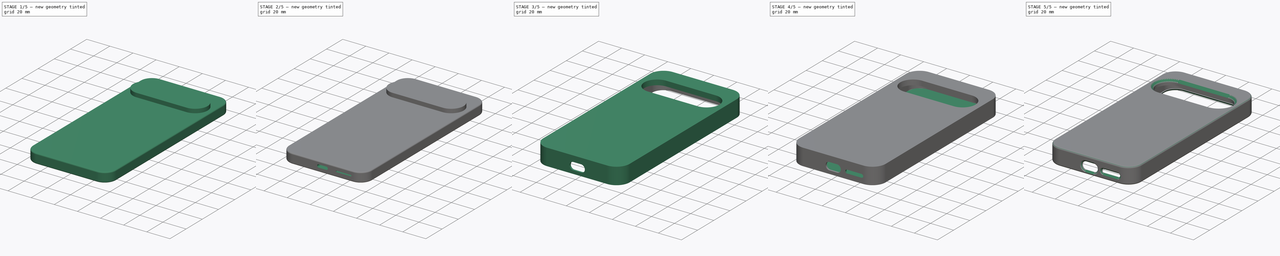
[diagram: build sequence overview — one tinted view per stage of 5, left to right]
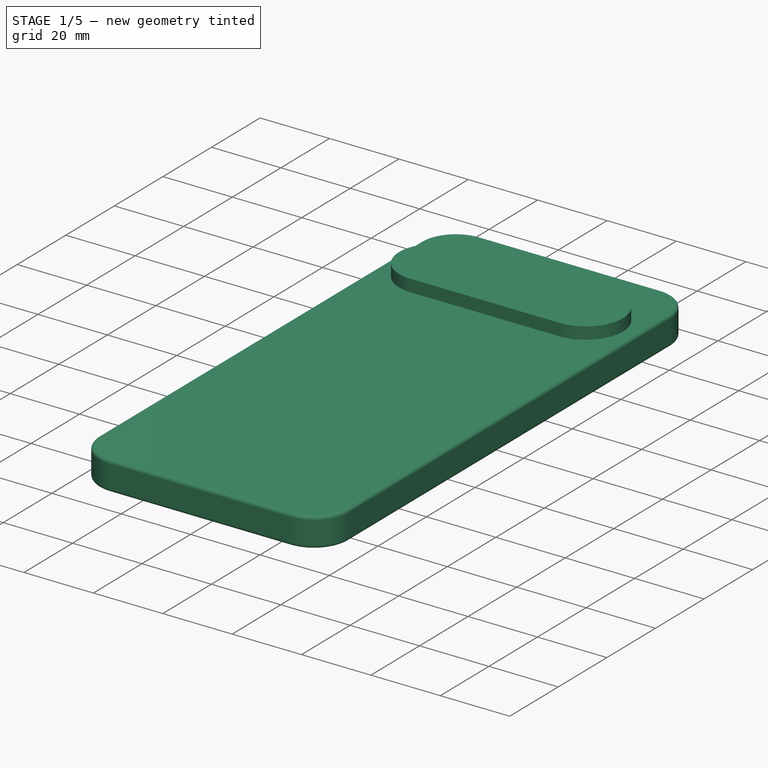
[diagram: stage 1 of 5 — iso view after this stage's code; geometry added in this stage tinted green]
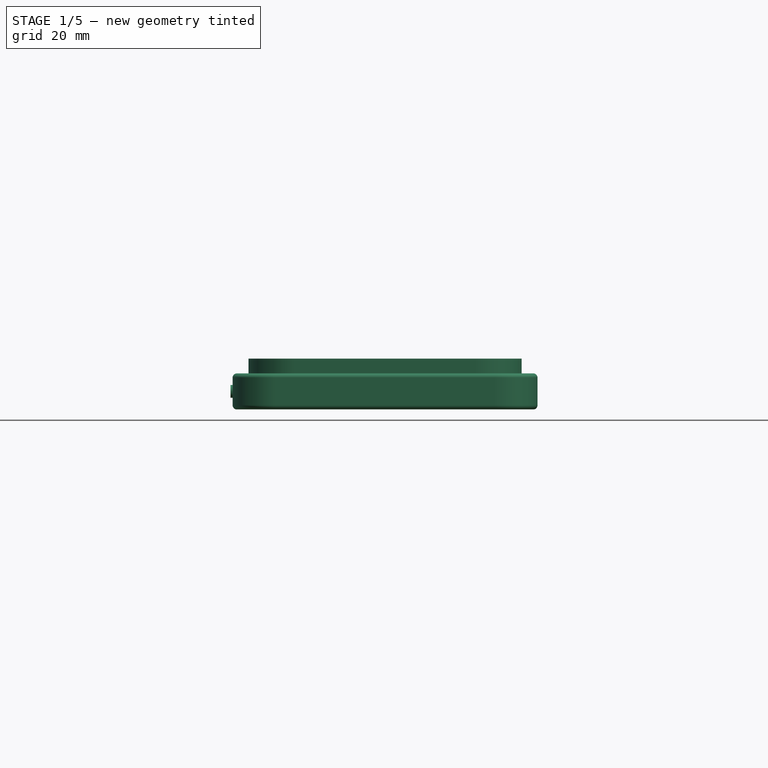
[diagram: stage 1 of 5 — front view after this stage's code; geometry added in this stage tinted green]
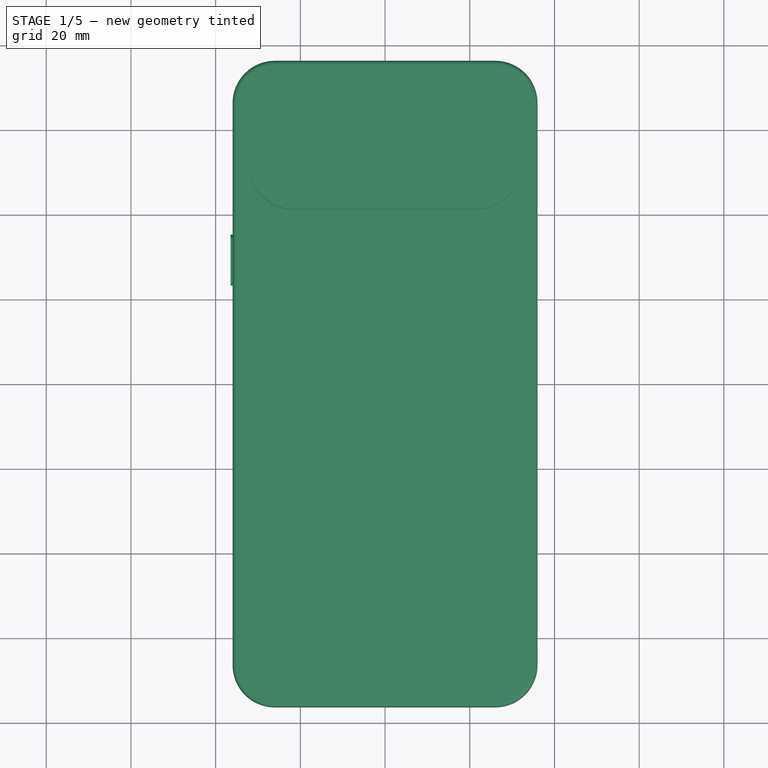
[diagram: stage 1 of 5 — top view after this stage's code; geometry added in this stage tinted green]
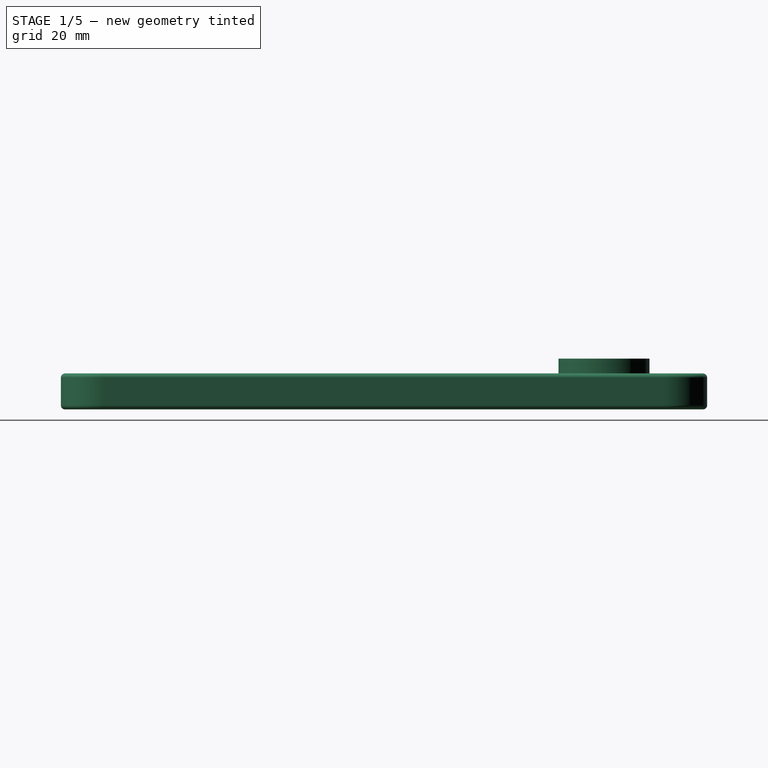
[diagram: stage 1 of 5 — right view after this stage's code; geometry added in this stage tinted green]
FCSTD DOCUMENT  (FreeCAD 1.0R39319 (Git))
Label: phone
License: All rights reserved
LicenseURL: https://en.wikipedia.org/wiki/All_rights_reserved
objects: PartDesign::SubShapeBinder×9, PartDesign::Pocket×7, Sketcher::SketchObject×6, PartDesign::Pad×6, PartDesign::Fillet×2, PartDesign::Body×2, PartDesign::Chamfer×2, PartDesign::SubtractiveLoft×1
note: 77 computed .brp shape members not serialized (recipe doc carries the construction recipe); baked Part::Feature solids carry a one-line shape summary decoded from their .brp

FEATURE [Sketcher::SketchObject] Sketch  label="SketchMain"
  ArcFitTolerance = 1e-06
  AttachmentSupport = -> [XY_Plane]
  FullyConstrained = true
  MakeInternals = false
  MapMode = 5
  sketch-geometry (12):
    g0: LineSegment StartX=-26 StartY=-76.3 StartZ=0 EndX=26 EndY=-76.3 EndZ=0
    g1: LineSegment StartX=36 StartY=-66.3 StartZ=0 EndX=36 EndY=66.3 EndZ=0
    g2: LineSegment StartX=26 StartY=76.3 StartZ=0 EndX=-26 EndY=76.3 EndZ=0
    g3: LineSegment StartX=-36 StartY=66.3 StartZ=0 EndX=-36 EndY=-66.3 EndZ=0
    g4: ArcOfCircle CenterX=-26 CenterY=66.3 CenterZ=0 NormalX=0 NormalY=0 NormalZ=1 AngleXU=0 Radius=10 StartAngle=1.5708 EndAngle=3.14159
    g5: GeomPoint [constr] X=-36 Y=76.3 Z=0
    g6: ArcOfCircle CenterX=26 CenterY=66.3 CenterZ=0 NormalX=0 NormalY=0 NormalZ=1 AngleXU=0 Radius=10 StartAngle=4e-16 EndAngle=1.5708
    g7: GeomPoint [constr] X=36 Y=76.3 Z=0
    g8: ArcOfCircle CenterX=26 CenterY=-66.3 CenterZ=0 NormalX=0 NormalY=0 NormalZ=1 AngleXU=0 Radius=10 StartAngle=4.71239 EndAngle=6.28319
    g9: GeomPoint [constr] X=36 Y=-76.3 Z=0
    g10: ArcOfCircle CenterX=-26 CenterY=-66.3 CenterZ=0 NormalX=0 NormalY=0 NormalZ=1 AngleXU=0 Radius=10 StartAngle=3.14159 EndAngle=4.71239
    g11: GeomPoint [constr] X=-36 Y=-76.3 Z=0
  constraints (26):
    c: Horizontal(g0)
    c: Horizontal(g2)
    c: Vertical(g1)
    c: Vertical(g3)
    c: Distance(g9,g11) = 72
    c: Distance(g11,g5) = 152.6
    c: PointOnObject(g5,g2)
    c: PointOnObject(g5,g3)
    c: Tangent(g2,g4) = -1.5708
    c: Tangent(g3,g4) = -1.5708
    c: Radius(g4) = 10
    c: PointOnObject(g7,g1)
    c: Tangent(g2,g6) = -1.5708
    c: Tangent(g1,g6) = -1.5708
    c: PointOnObject(g9,g0)
    c: Tangent(g0,g8) = -1.5708
    c: Tangent(g1,g8) = -1.5708
    c: PointOnObject(g11,g3)
    c: PointOnObject(g11,g0)
    c: Tangent(g3,g10) = -1.5708
    c: Tangent(g0,g10) = -1.5708
    c: Equal(g6,g4)
    c: Equal(g4,g8)
    c: Equal(g8,g10)
    c: Symmetric(g5,g7,g-2)
    c: Symmetric(g7,g9,g-1)
FEATURE [PartDesign::Pad] Pad  label="MainPad"
  Direction = (0,0,1)
  Length = 8.5
  Length2 = 10
  Profile = -> Sketch
  ReferenceAxis = -> Sketch [N_Axis]
  Refine = true
  Suppressed = false
  Type = 0
FEATURE [Sketcher::SketchObject] Sketch002  label="CameraSketch"
  ArcFitTolerance = 1e-06
  AttachmentSupport = -> [Pad]
  ExternalGeometry = -> [Pad]
  FullyConstrained = true
  MakeInternals = false
  MapMode = 5
  Placement = pos=(0,0,8.5) rot=(0,0,1;0rad)
  expr: Constraints[6] = 64.5 - 10.75 * 2
  sketch-geometry (4):
    g0: ArcOfCircle CenterX=-21.5 CenterY=51.95 CenterZ=0 NormalX=0 NormalY=0 NormalZ=1 AngleXU=0 Radius=10.75 StartAngle=1.5708 EndAngle=4.71239
    g1: ArcOfCircle CenterX=21.5 CenterY=51.95 CenterZ=0 NormalX=0 NormalY=0 NormalZ=1 AngleXU=0 Radius=10.75 StartAngle=4.71239 EndAngle=7.85398
    g2: LineSegment StartX=-21.5 StartY=62.7 StartZ=0 EndX=21.5 EndY=62.7 EndZ=0
    g3: LineSegment StartX=-21.5 StartY=41.2 StartZ=0 EndX=21.5 EndY=41.2 EndZ=0
  constraints (9):
    c: Tangent(g0,g2) = 1.5708
    c: Tangent(g0,g3) = -1.5708
    c: Tangent(g1,g2) = 1.5708
    c: Tangent(g1,g3) = -1.5708
    c: Equal(g0,g1)
    c: Radius(g0) = 10.75
    c: DistanceX(g0,g1) = 43
    c: Symmetric(g0,g1,g-2)
    c: Distance(g-3,g2) = 13.6
FEATURE [PartDesign::Fillet] Fillet  label="MainFilet"
  Base = -> Pad [Edge1,Edge2,Edge3,Edge4,Edge5,Edge6,Edge7,Edge8,Edge9,Edge10,Edge11,Edge12,Edge13,Edge14,Edge15,Edge16,Edge17,Edge18,Edge19,Edge20,Edge21,Edge22,Edge23,Edge24]
  BaseFeature = -> Pad
  Radius = 1
  Refine = true
  SupportTransform = false
  Suppressed = false
  UseAllEdges = true
FEATURE [PartDesign::Pad] Pad001  label="CameraPad"
  BaseFeature = -> Fillet
  Direction = (0,0,1)
  Length = 3.5
  Length2 = 10
  Profile = -> Sketch002
  ReferenceAxis = -> Sketch002 [N_Axis]
  Refine = true
  Suppressed = false
  Type = 0
FEATURE [Sketcher::SketchObject] Sketch003  label="PowerButtonSketch"
  ArcFitTolerance = 1e-06
  AttachmentSupport = -> [Pad001]
  ExternalGeometry = -> [Pad001]
  FullyConstrained = true
  MakeInternals = false
  MapMode = 5
  Placement = pos=(-36,0,0) rot=(0.57735,-0.57735,-0.57735;2.0944rad)
  expr: .Constraints.Height = 3 mm
  sketch-geometry (12):
    g0: LineSegment StartX=-35.3 StartY=4.26 StartZ=0 EndX=-35.3 EndY=4.24 EndZ=0
    g1: LineSegment StartX=-33.81 StartY=2.75 StartZ=0 EndX=-24.79 EndY=2.75 EndZ=0
    g2: LineSegment StartX=-23.3 StartY=4.24 StartZ=0 EndX=-23.3 EndY=4.26 EndZ=0
    g3: LineSegment StartX=-24.79 StartY=5.75 StartZ=0 EndX=-33.81 EndY=5.75 EndZ=0
    g4: ArcOfCircle CenterX=-33.81 CenterY=4.26 CenterZ=0 NormalX=0 NormalY=0 NormalZ=1 AngleXU=0 Radius=1.49 StartAngle=1.5708 EndAngle=3.14159
    g5: GeomPoint [constr] X=-35.3 Y=5.75 Z=0
    g6: ArcOfCircle CenterX=-24.79 CenterY=4.26 CenterZ=0 NormalX=0 NormalY=0 NormalZ=1 AngleXU=0 Radius=1.49 StartAngle=0 EndAngle=1.5708
    g7: GeomPoint [constr] X=-23.3 Y=5.75 Z=0
    g8: ArcOfCircle CenterX=-24.79 CenterY=4.24 CenterZ=0 NormalX=0 NormalY=0 NormalZ=1 AngleXU=0 Radius=1.49 StartAngle=4.71239 EndAngle=6.28319
    g9: GeomPoint [constr] X=-23.3 Y=2.75 Z=0
    g10: ArcOfCircle CenterX=-33.81 CenterY=4.24 CenterZ=0 NormalX=0 NormalY=0 NormalZ=1 AngleXU=0 Radius=1.49 StartAngle=3.14159 EndAngle=4.71239
    g11: GeomPoint [constr] X=-35.3 Y=2.75 Z=0
  constraints (28):
    c: Vertical(g0)
    c: Vertical(g2)
    c: Horizontal(g1)
    c: Horizontal(g3)
    c: Distance(g5,g7) = 12  'Width'
    c: Distance(g11,g5) = 3  'Height'
    c: PointOnObject(g5,g0)
    c: PointOnObject(g5,g3)
    c: Tangent(g0,g4) = -1.5708
    c: Tangent(g3,g4) = -1.5708
    c: PointOnObject(g7,g2)
    c: PointOnObject(g7,g3)
    c: Tangent(g2,g6) = -1.5708
    c: Tangent(g3,g6) = -1.5708
    c: PointOnObject(g9,g1)
    c: PointOnObject(g9,g2)
    c: Tangent(g1,g8) = -1.5708
    c: Tangent(g2,g8) = -1.5708
    c: PointOnObject(g11,g0)
    c: PointOnObject(g11,g1)
    c: Tangent(g0,g10) = -1.5708
    c: Tangent(g1,g10) = -1.5708
    c: Equal(g4,g10)
    c: Equal(g10,g8)
    c: Equal(g8,g6)
    c: Radius(g4) = 1.49
    c: Distance(g0,g-3) = 41
    c: Distance(g-4,g3) = 2.75
FEATURE [Sketcher::SketchObject] Sketch004  label="VolumeButtonSketch"
  ArcFitTolerance = 1e-06
  AttachmentSupport = -> [Pad001]
  ExternalGeometry = -> [Pad001]
  FullyConstrained = true
  MakeInternals = false
  MapMode = 5
  Placement = pos=(-36,0,0) rot=(0.57735,-0.57735,-0.57735;2.0944rad)
  sketch-geometry (12):
    g0: LineSegment StartX=-16.3 StartY=4.26 StartZ=0 EndX=-16.3 EndY=4.24 EndZ=0
    g1: LineSegment StartX=-14.81 StartY=2.75 StartZ=0 EndX=4.21 EndY=2.75 EndZ=0
    g2: LineSegment StartX=5.7 StartY=4.24 StartZ=0 EndX=5.7 EndY=4.26 EndZ=0
    g3: LineSegment StartX=4.21 StartY=5.75 StartZ=0 EndX=-14.81 EndY=5.75 EndZ=0
    g4: ArcOfCircle CenterX=-14.81 CenterY=4.26 CenterZ=0 NormalX=0 NormalY=0 NormalZ=1 AngleXU=0 Radius=1.49 StartAngle=1.5708 EndAngle=3.14159
    g5: GeomPoint [constr] X=-16.3 Y=5.75 Z=0
    g6: ArcOfCircle CenterX=4.21 CenterY=4.26 CenterZ=0 NormalX=0 NormalY=0 NormalZ=1 AngleXU=0 Radius=1.49 StartAngle=2e-15 EndAngle=1.5708
    g7: GeomPoint [constr] X=5.7 Y=5.75 Z=0
    g8: ArcOfCircle CenterX=4.21 CenterY=4.24 CenterZ=0 NormalX=0 NormalY=0 NormalZ=1 AngleXU=0 Radius=1.49 StartAngle=4.71239 EndAngle=6.28319
    g9: GeomPoint [constr] X=5.7 Y=2.75 Z=0
    g10: ArcOfCircle CenterX=-14.81 CenterY=4.24 CenterZ=0 NormalX=0 NormalY=0 NormalZ=1 AngleXU=0 Radius=1.49 StartAngle=3.14159 EndAngle=4.71239
    g11: GeomPoint [constr] X=-16.3 Y=2.75 Z=0
  constraints (28):
    c: Vertical(g0)
    c: Vertical(g2)
    c: Horizontal(g1)
    c: Horizontal(g3)
    c: Distance(g5,g7) = 22
    c: Distance(g11,g5) = 3
    c: Distance(g-3,g0) = 60
    c: Distance(g-4,g3) = 2.75
    c: PointOnObject(g5,g0)
    c: PointOnObject(g5,g3)
    c: Tangent(g0,g4) = -1.5708
    c: Tangent(g3,g4) = -1.5708
    c: PointOnObject(g7,g2)
    c: PointOnObject(g7,g3)
    c: Tangent(g2,g6) = -1.5708
    c: Tangent(g3,g6) = -1.5708
    c: PointOnObject(g9,g1)
    c: PointOnObject(g9,g2)
    c: Tangent(g1,g8) = -1.5708
    c: Tangent(g2,g8) = -1.5708
    c: PointOnObject(g11,g0)
    c: PointOnObject(g11,g1)
    c: Tangent(g0,g10) = -1.5708
    c: Tangent(g1,g10) = -1.5708
    c: Equal(g10,g4)
    c: Equal(g4,g6)
    c: Equal(g6,g8)
    c: Radius(g4) = 1.49
FEATURE [PartDesign::Pad] Pad003  label="PowerButtonPad"
  BaseFeature = -> Pad001
  Direction = (-1,0,0)
  Length = 0.5
  Length2 = 10
  Profile = -> Sketch003
  ReferenceAxis = -> Sketch003 [N_Axis]
  Refine = true
  Suppressed = false
  Type = 0
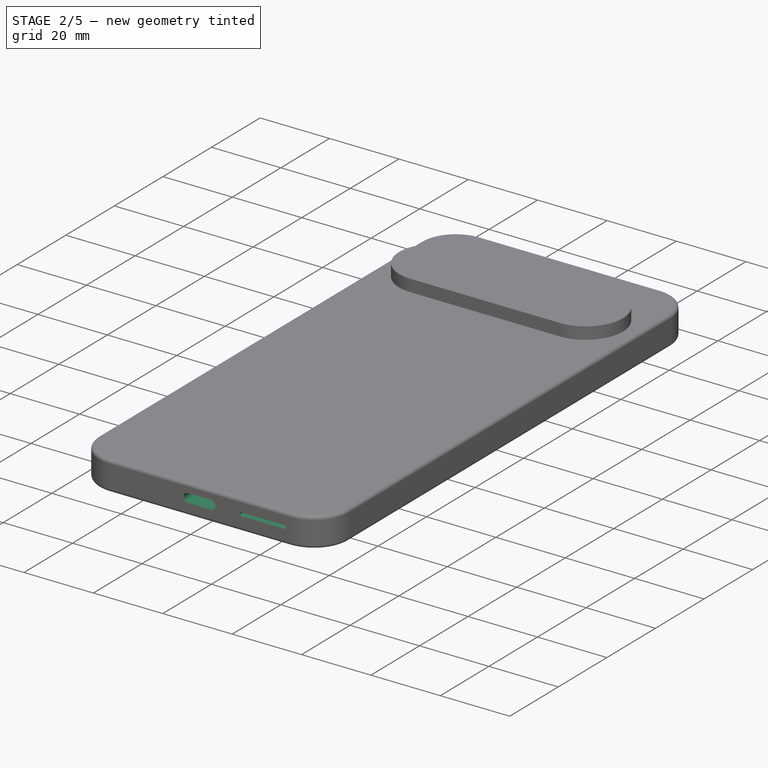
[diagram: stage 2 of 5 — iso view after this stage's code; geometry added in this stage tinted green]
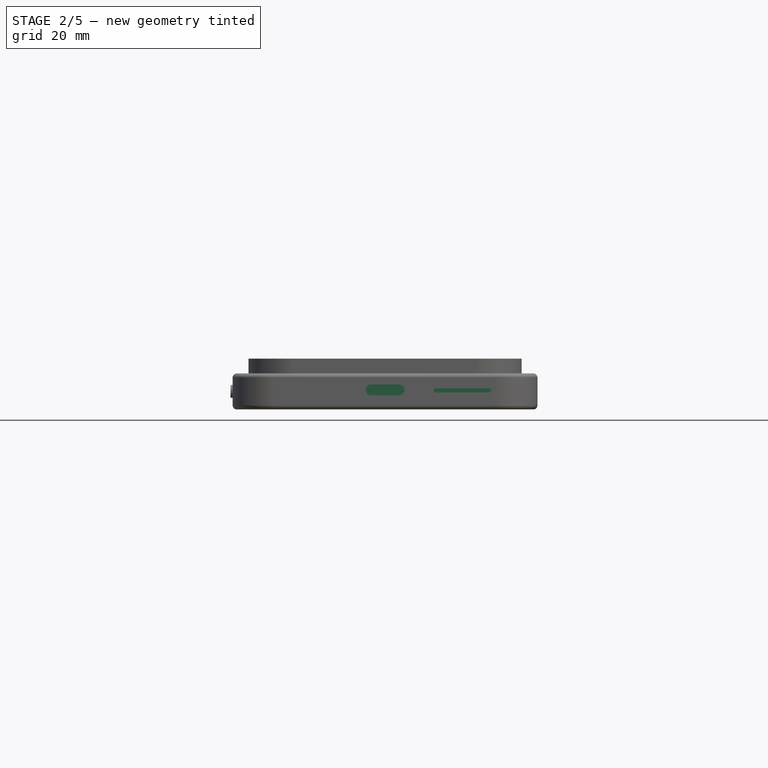
[diagram: stage 2 of 5 — front view after this stage's code; geometry added in this stage tinted green]
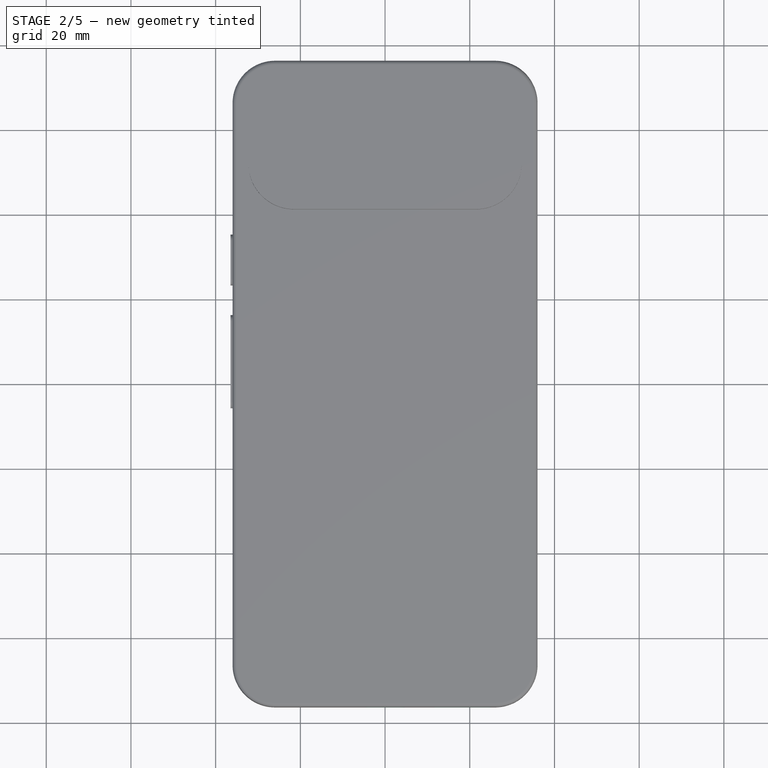
[diagram: stage 2 of 5 — top view after this stage's code; geometry added in this stage tinted green]
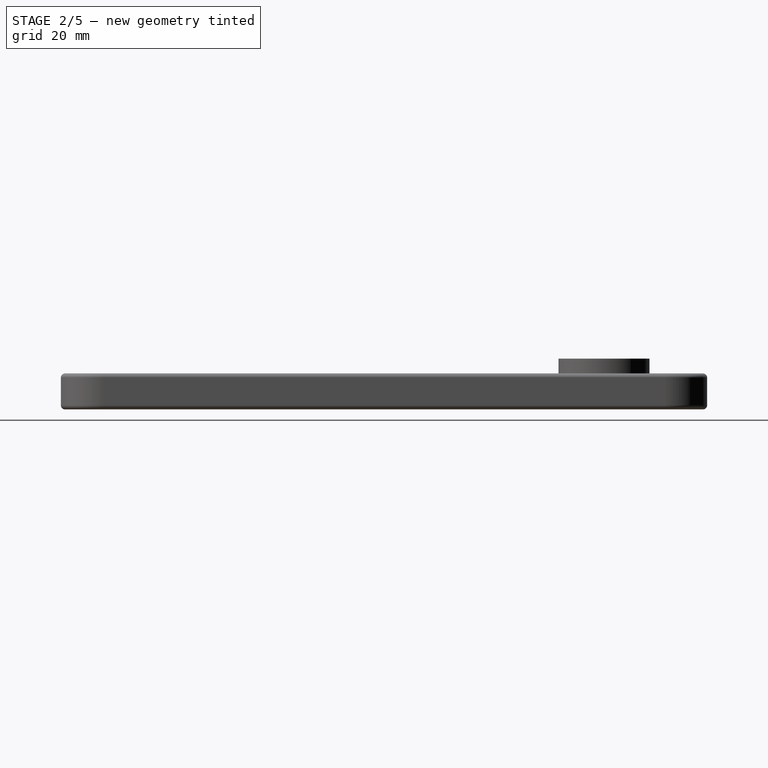
[diagram: stage 2 of 5 — right view after this stage's code; geometry added in this stage tinted green]
FEATURE [PartDesign::Pad] Pad004  label="VolumeButtonPad"
  BaseFeature = -> Pad003
  Direction = (-1,0,0)
  Length = 0.5
  Length2 = 10
  Profile = -> Sketch004
  ReferenceAxis = -> Sketch004 [N_Axis]
  Refine = true
  Suppressed = false
  Type = 0
FEATURE [Sketcher::SketchObject] Sketch005  label="ChargerSketch"
  ArcFitTolerance = 1e-06
  AttachmentSupport = -> [Pad004]
  ExternalGeometry = -> [Pad004]
  FullyConstrained = true
  MakeInternals = false
  MapMode = 5
  Placement = pos=(0,-76.3,0) rot=(1,0,0;1.5708rad)
  sketch-geometry (4):
    g0: ArcOfCircle CenterX=-3.315 CenterY=4.62 CenterZ=0 NormalX=0 NormalY=0 NormalZ=1 AngleXU=0 Radius=1.28 StartAngle=1.5708 EndAngle=4.71239
    g1: ArcOfCircle CenterX=3.315 CenterY=4.62 CenterZ=0 NormalX=0 NormalY=0 NormalZ=1 AngleXU=0 Radius=1.28 StartAngle=4.71239 EndAngle=7.85398
    g2: LineSegment StartX=-3.315 StartY=5.9 StartZ=0 EndX=3.315 EndY=5.9 EndZ=0
    g3: LineSegment StartX=-3.315 StartY=3.34 StartZ=0 EndX=3.315 EndY=3.34 EndZ=0
  constraints (9):
    c: Tangent(g0,g2) = 1.5708
    c: Tangent(g0,g3) = -1.5708
    c: Tangent(g1,g2) = 1.5708
    c: Tangent(g1,g3) = -1.5708
    c: Equal(g0,g1)
    c: Distance(g0,g1) = 6.63
    c: Radius(g0) = 1.28
    c: Symmetric(g0,g1,g-2)
    c: Distance(g-1,g3) = 3.34
FEATURE [PartDesign::Pocket] Pocket002  label="ChangerPocket"
  BaseFeature = -> Pad004
  Direction = (0,1,-2e-16)
  Length = 10
  Length2 = 5
  Profile = -> Sketch005
  ReferenceAxis = -> Sketch005 [N_Axis]
  Refine = true
  Suppressed = false
  Type = 0
FEATURE [Sketcher::SketchObject] Sketch006
  ArcFitTolerance = 1e-06
  AttachmentSupport = -> [Pocket002]
  ExternalGeometry = -> [Pocket002]
  FullyConstrained = true
  MakeInternals = false
  MapMode = 5
  Placement = pos=(0,-76.3,0) rot=(1,0,0;1.5708rad)
  sketch-geometry (4):
    g0: ArcOfCircle CenterX=12 CenterY=4.5 CenterZ=0 NormalX=0 NormalY=0 NormalZ=1 AngleXU=0 Radius=0.5 StartAngle=1.5708 EndAngle=4.71239
    g1: ArcOfCircle CenterX=24.5 CenterY=4.5 CenterZ=0 NormalX=0 NormalY=0 NormalZ=1 AngleXU=0 Radius=0.5 StartAngle=4.71239 EndAngle=7.85398
    g2: LineSegment StartX=12 StartY=5 StartZ=0 EndX=24.5 EndY=5 EndZ=0
    g3: LineSegment StartX=12 StartY=4 StartZ=0 EndX=24.5 EndY=4 EndZ=0
  constraints (10):
    c: Tangent(g0,g2) = 1.5708
    c: Tangent(g0,g3) = -1.5708
    c: Tangent(g1,g2) = 1.5708
    c: Tangent(g1,g3) = -1.5708
    c: Equal(g0,g1)
    c: Horizontal(g3)
    c: Distance(g0,g1) = 12.5
    c: Radius(g0) = 0.5
    c: Distance(g1,g-3) = 11.5
    c: Distance(g-1,g3) = 4
FEATURE [PartDesign::Pocket] Pocket003  label="SpeakerPocket"
  BaseFeature = -> Pocket002
  Direction = (0,1,-2e-16)
  Length = 5
  Length2 = 5
  Profile = -> Sketch006
  ReferenceAxis = -> Sketch006 [N_Axis]
  Refine = true
  Suppressed = false
  Type = 0
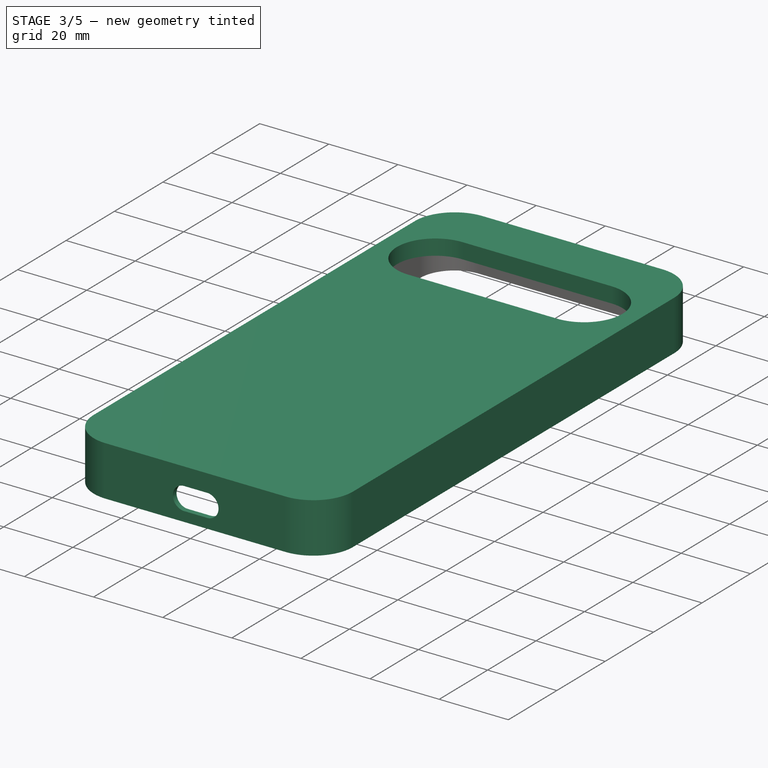
[diagram: stage 3 of 5 — iso view after this stage's code; geometry added in this stage tinted green]
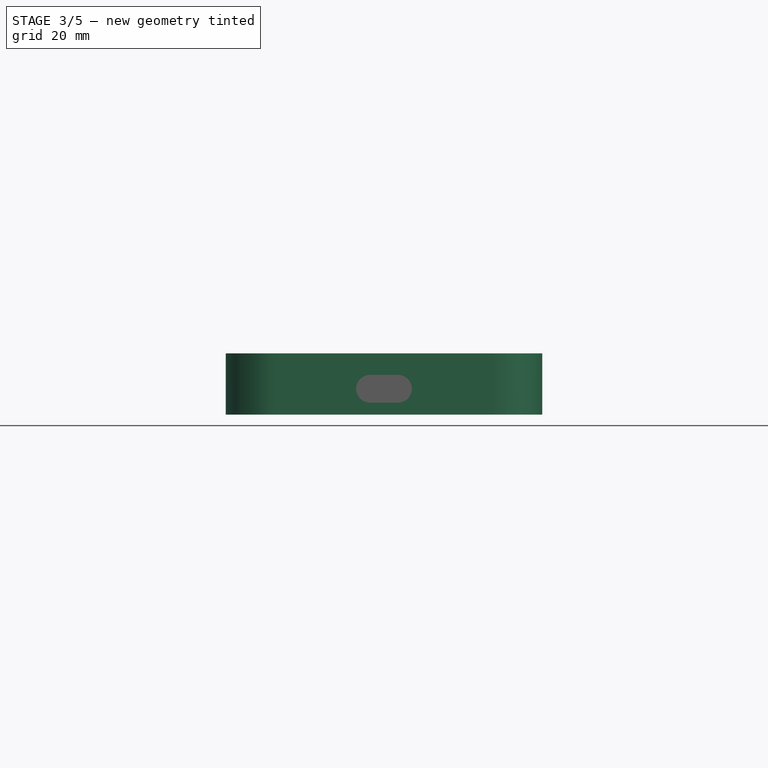
[diagram: stage 3 of 5 — front view after this stage's code; geometry added in this stage tinted green]
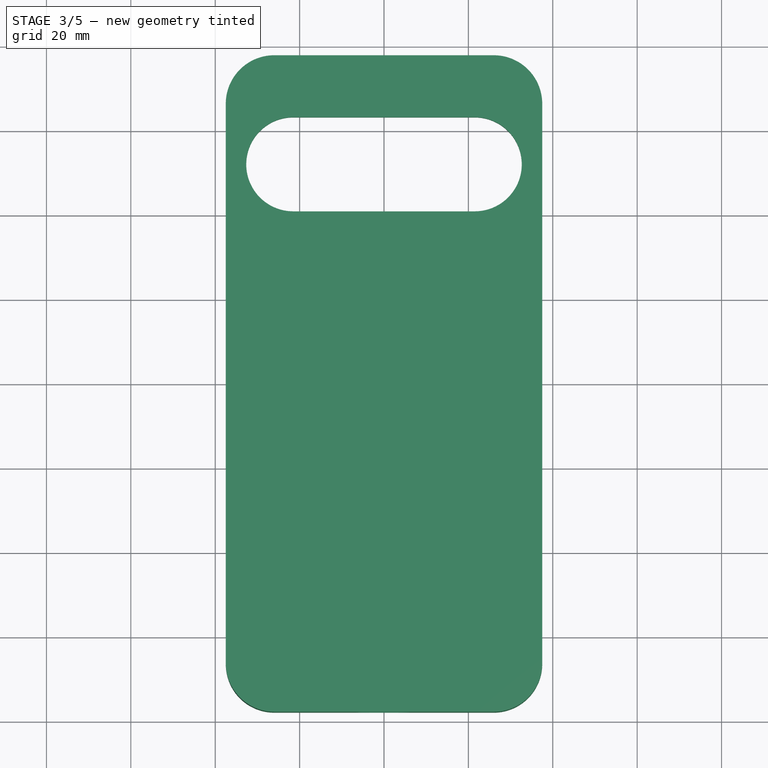
[diagram: stage 3 of 5 — top view after this stage's code; geometry added in this stage tinted green]
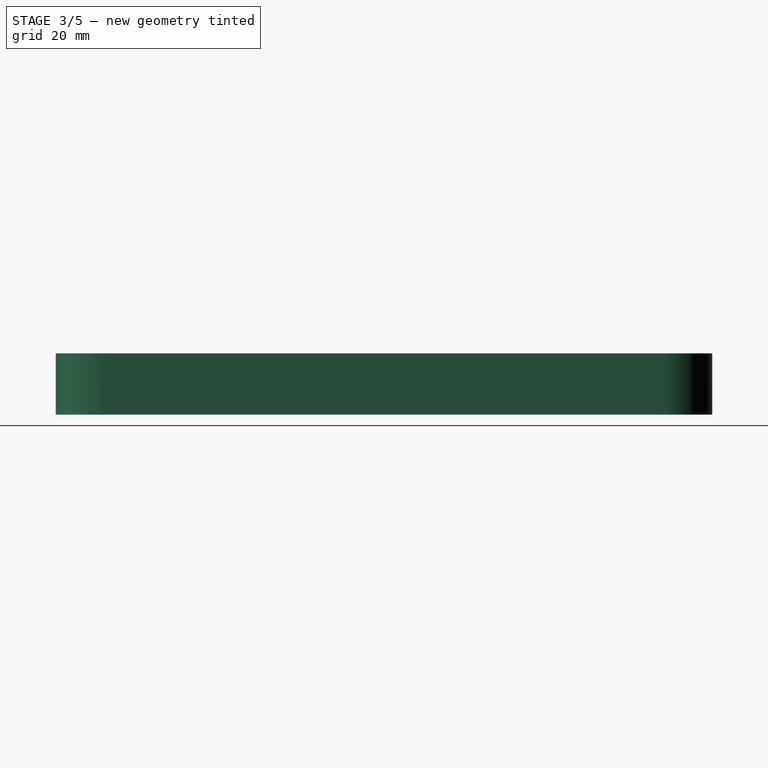
[diagram: stage 3 of 5 — right view after this stage's code; geometry added in this stage tinted green]
FEATURE [PartDesign::SubShapeBinder] Binder
  BindCopyOnChange = 0
  BindMode = 0
  ClaimChildren = false
  Context = -> Body001 [Binder.]
  Fuse = false
  MakeFace = true
  Offset = 1.5
  OffsetFill = false
  OffsetIntersection = false
  OffsetJoinType = 0
  OffsetOpenResult = false
  PartialLoad = false
  Placement = pos=(0,0,4.5) rot=(0,0,1;0rad)
  Refine = true
  Relative = true
  Support = -> [Body[Pad.Face10]]
  _Version = 2
FEATURE [PartDesign::Pad] Pad002  label="MainPad001"
  Direction = (0,0,1)
  Length = 14.5
  Length2 = 10
  Placement = pos=(0,0,4.5) rot=(0,0,1;0rad)
  Profile = -> Binder
  Refine = true
  Reversed = true
  Suppressed = false
  Type = 0
FEATURE [PartDesign::SubShapeBinder] Binder001  label="CameraBinder"
  BindCopyOnChange = 0
  BindMode = 0
  ClaimChildren = false
  Context = -> Body001 [Binder001.]
  Fuse = false
  MakeFace = true
  Offset = 0.4
  OffsetFill = false
  OffsetIntersection = false
  OffsetJoinType = 0
  OffsetOpenResult = false
  PartialLoad = false
  Placement = pos=(0,0,1) rot=(0,0,1;0rad)
  Refine = true
  Relative = true
  Support = -> [Body[Pad004.Face49]]
  _Version = 2
FEATURE [PartDesign::SubShapeBinder] Binder002  label="MainPocketBinder"
  BindCopyOnChange = 0
  BindMode = 0
  ClaimChildren = false
  Context = -> Body001 [Binder002.]
  Fuse = false
  MakeFace = true
  Offset = -1.5
  OffsetFill = false
  OffsetIntersection = false
  OffsetJoinType = 0
  OffsetOpenResult = false
  PartialLoad = false
  Placement = pos=(0,0,-0.5) rot=(0,0,1;0rad)
  Refine = true
  Relative = true
  _Version = 2
FEATURE [PartDesign::Pocket] Pocket  label="MainPocket"
  BaseFeature = -> Pad002
  Direction = (0,0,1)
  Length = 10
  Length2 = 5
  Placement = pos=(0,0,4.5) rot=(0,0,1;0rad)
  Profile = -> Binder002
  Refine = true
  Suppressed = false
  Type = 0
FEATURE [PartDesign::Pocket] Pocket001  label="CameraPocket"
  BaseFeature = -> Pocket
  Direction = (0,0,-1)
  Length = 4.5
  Length2 = 5
  Placement = pos=(0,0,4.5) rot=(0,0,1;0rad)
  Profile = -> Binder001
  Refine = true
  Suppressed = false
  Type = 0
FEATURE [PartDesign::Body] Body  label="Phone"
  AllowCompound = false
  Group = -> [Sketch,Pad,Sketch002,Fillet,Pad001,Sketch003,Sketch004,Pad003,Pad004,Sketch005,Pocket002,Sketch006,Pocket003]
  Origin = -> Origin
  Tip = -> Pocket003
FEATURE [PartDesign::SubShapeBinder] Binder003  label="SpeakerPocketBinder"
  BindCopyOnChange = 0
  BindMode = 0
  ClaimChildren = false
  Context = -> Body001 [Binder003.]
  Fuse = false
  MakeFace = true
  Offset = 1
  OffsetFill = false
  OffsetIntersection = false
  OffsetJoinType = 0
  OffsetOpenResult = false
  PartialLoad = false
  Refine = true
  Relative = true
  Support = -> [Body[Sketch006.]]
  _Version = 2
FEATURE [PartDesign::SubShapeBinder] Binder004  label="ChargerBinder"
  BindCopyOnChange = 0
  BindMode = 0
  ClaimChildren = false
  Context = -> Body001 [Binder004.]
  Fuse = false
  MakeFace = true
  Offset = 2
  OffsetFill = false
  OffsetIntersection = false
  OffsetJoinType = 0
  OffsetOpenResult = false
  PartialLoad = false
  Refine = true
  Relative = true
  Support = -> [Body[Sketch005.]]
  _Version = 2
FEATURE [PartDesign::Pocket] Pocket004  label="CaseChargerPocket"
  BaseFeature = -> Pocket001
  Direction = (0,1,0)
  Length = 5
  Length2 = 5
  Placement = pos=(0,0,4.5) rot=(0,0,1;0rad)
  Profile = -> Binder004
  Refine = true
  Reversed = true
  Suppressed = false
  Type = 0
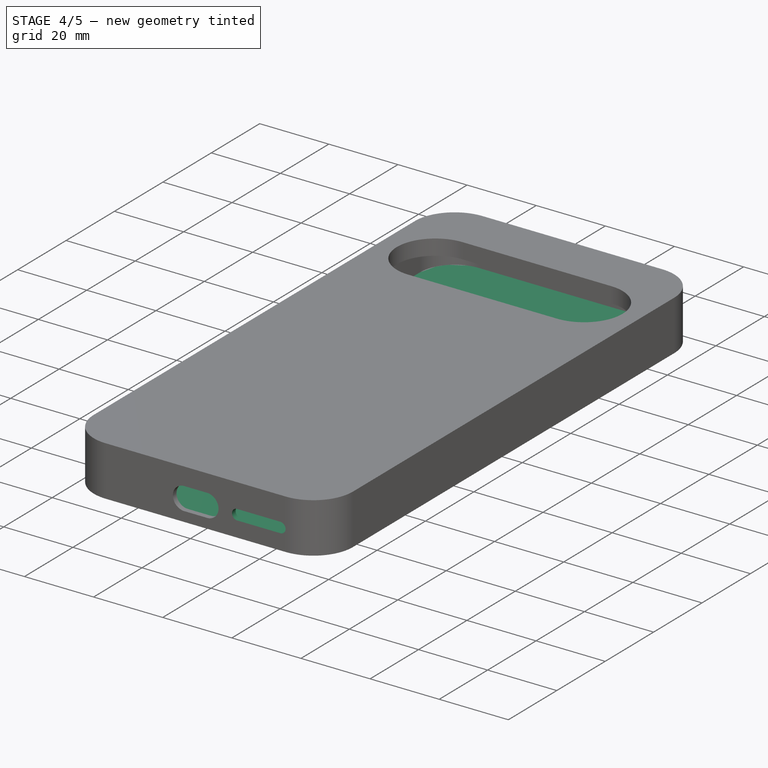
[diagram: stage 4 of 5 — iso view after this stage's code; geometry added in this stage tinted green]
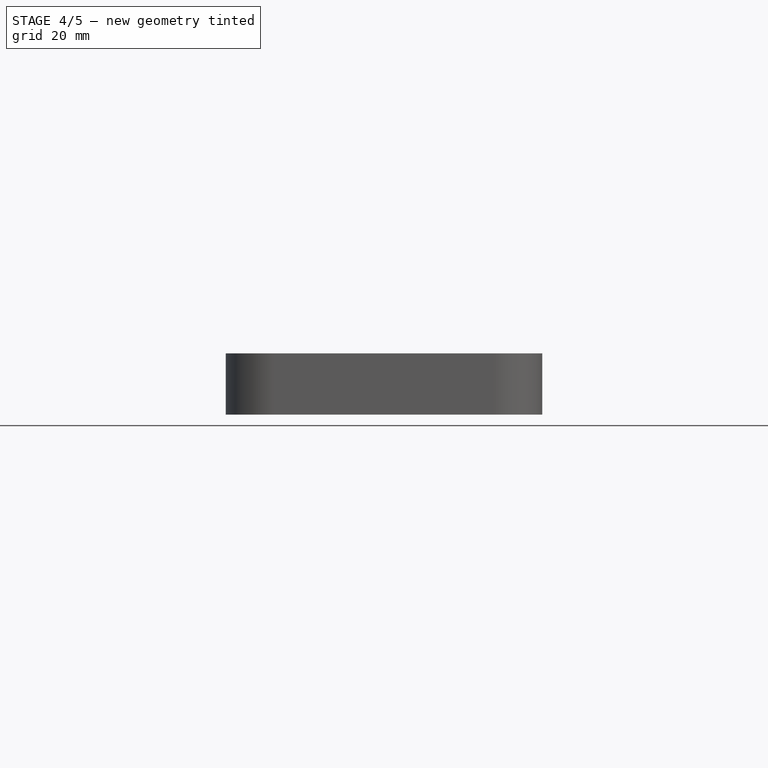
[diagram: stage 4 of 5 — front view after this stage's code; geometry added in this stage tinted green]
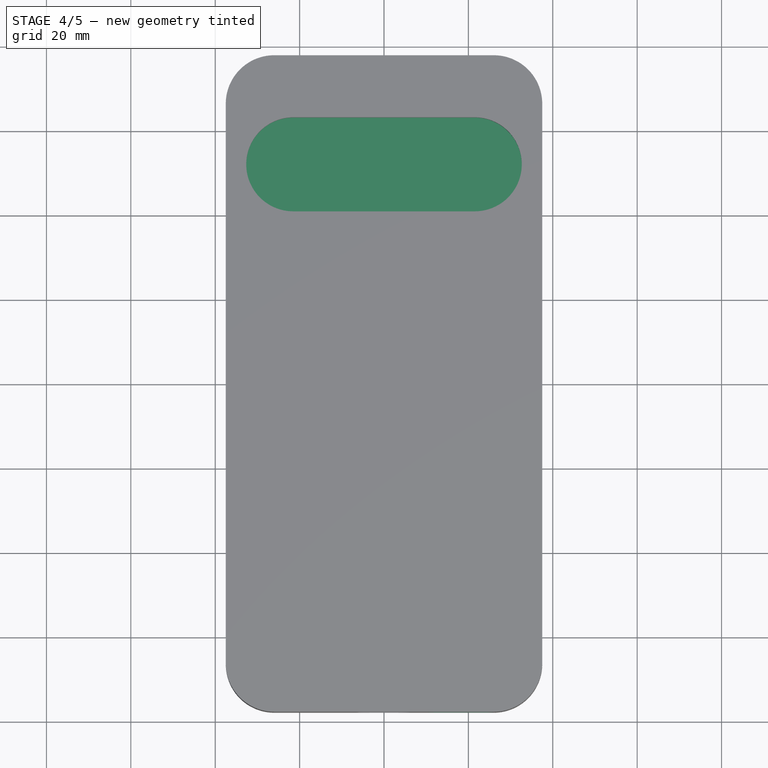
[diagram: stage 4 of 5 — top view after this stage's code; geometry added in this stage tinted green]
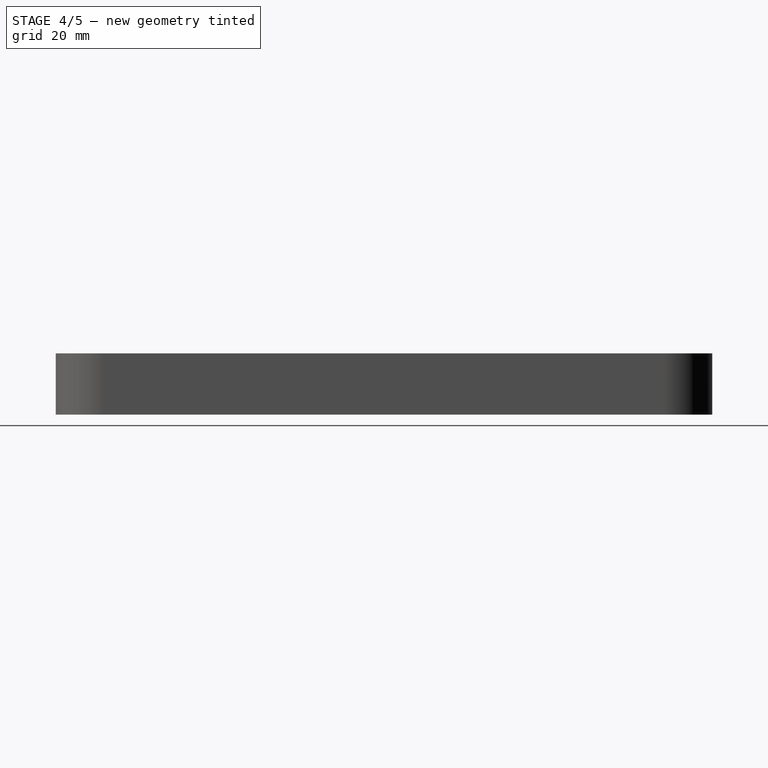
[diagram: stage 4 of 5 — right view after this stage's code; geometry added in this stage tinted green]
FEATURE [PartDesign::Pocket] Pocket005  label="CaseSpeakerPocket"
  BaseFeature = -> Pocket004
  Direction = (0,1,0)
  Length = 5
  Length2 = 5
  Placement = pos=(0,0,4.5) rot=(0,0,1;0rad)
  Profile = -> Binder003
  Refine = true
  Reversed = true
  Suppressed = false
  Type = 0
FEATURE [PartDesign::SubShapeBinder] Binder005  label="ButtonsBinder"
  BindCopyOnChange = 0
  BindMode = 0
  ClaimChildren = false
  Context = -> Body001 [Binder005.]
  Fuse = false
  MakeFace = true
  Offset = 2
  OffsetFill = false
  OffsetIntersection = false
  OffsetJoinType = 0
  OffsetOpenResult = false
  PartialLoad = false
  Placement = pos=(1,0,0) rot=(0,0,1;0rad)
  Refine = true
  Relative = true
  Support = -> [Body[Pocket003.Face58,Pocket003.Face57]]
  _Version = 2
FEATURE [PartDesign::Pocket] Pocket006  label="CaseButtonsPocket"
  BaseFeature = -> Pocket005
  Direction = (-1,0,0)
  Length = 5
  Length2 = 5
  Placement = pos=(0,0,4.5) rot=(0,0,1;0rad)
  Profile = -> Binder005
  Refine = true
  Suppressed = false
  Type = 0
FEATURE [PartDesign::SubShapeBinder] Binder006  label="ClipBodyBinder"
  BindCopyOnChange = 0
  BindMode = 0
  ClaimChildren = false
  Context = -> Body001 [Binder006.]
  Fuse = false
  MakeFace = true
  OffsetFill = false
  OffsetIntersection = false
  OffsetJoinType = 0
  OffsetOpenResult = false
  PartialLoad = false
  Refine = true
  Relative = true
  Support = -> [Pad002[Face10]]
  _Version = 2
FEATURE [PartDesign::Pad] Pad005  label="ClipBodyPad"
  BaseFeature = -> Pocket006
  Direction = (0,0,-1)
  Length = 1.5
  Length2 = 10
  Placement = pos=(0,0,4.5) rot=(0,0,1;0rad)
  Profile = -> Binder006
  Refine = true
  Reversed = true
  Suppressed = false
  Type = 0
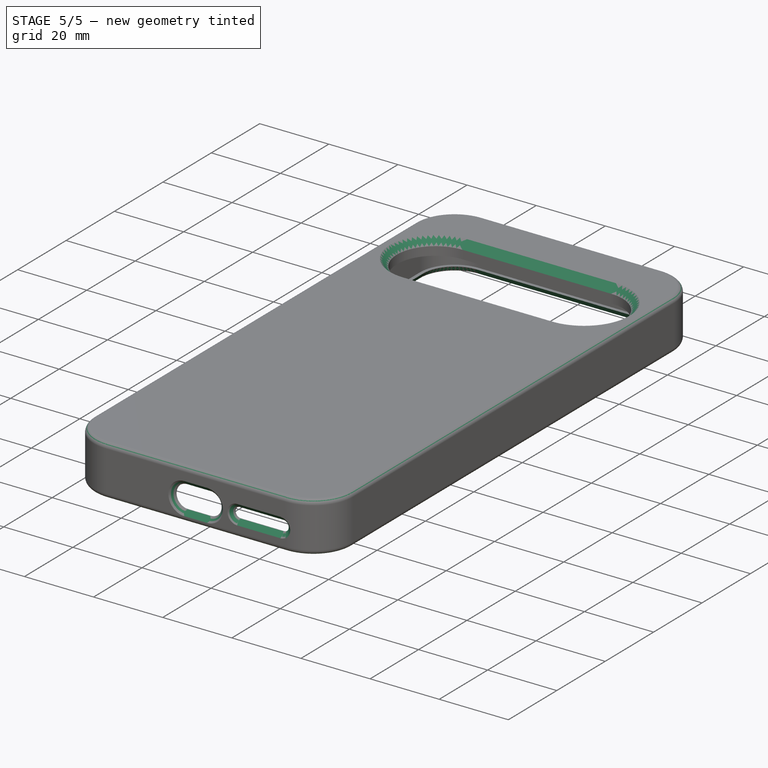
[diagram: stage 5 of 5 — iso view after this stage's code; geometry added in this stage tinted green]
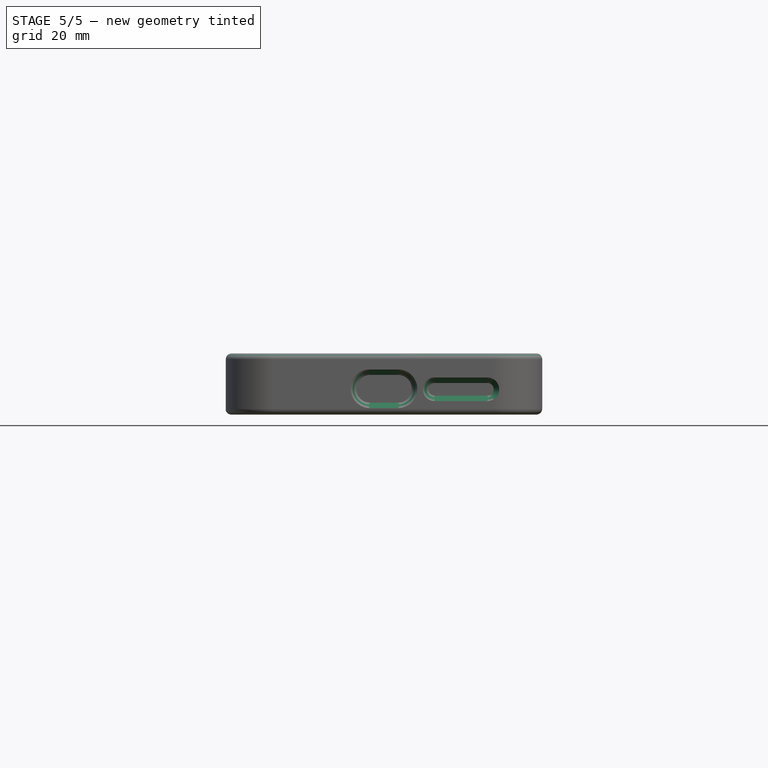
[diagram: stage 5 of 5 — front view after this stage's code; geometry added in this stage tinted green]
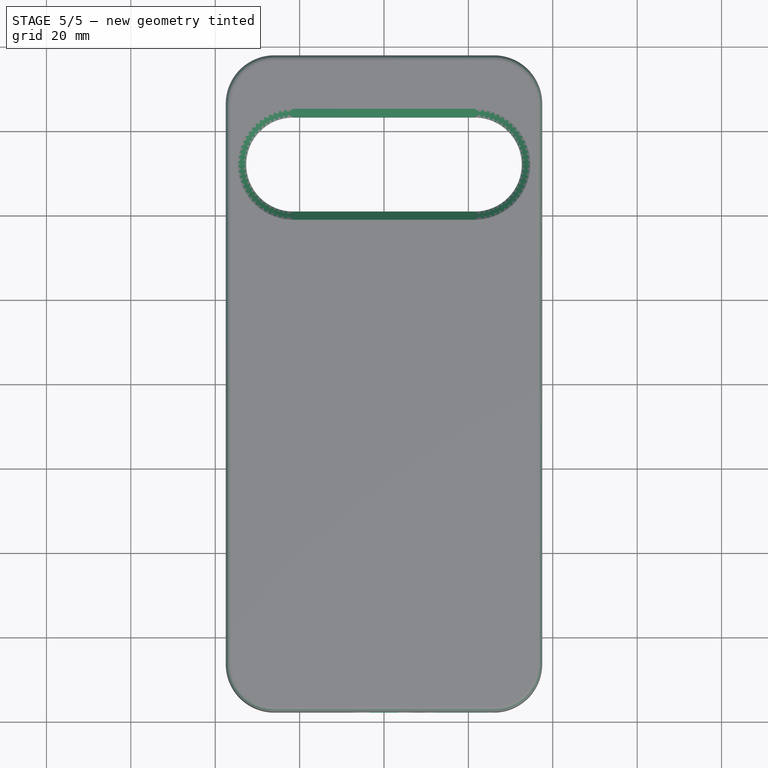
[diagram: stage 5 of 5 — top view after this stage's code; geometry added in this stage tinted green]
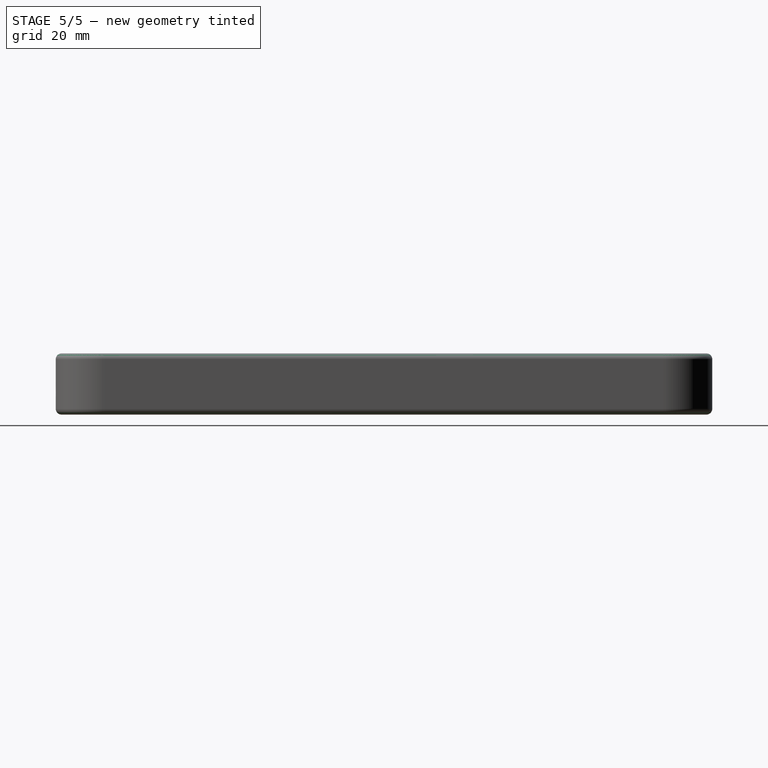
[diagram: stage 5 of 5 — right view after this stage's code; geometry added in this stage tinted green]
FEATURE [PartDesign::SubShapeBinder] Binder007  label="Clip1"
  BindCopyOnChange = 0
  BindMode = 0
  ClaimChildren = false
  Context = -> Body001 [Binder007.]
  Fuse = false
  MakeFace = true
  Offset = -1.5
  OffsetFill = false
  OffsetIntersection = false
  OffsetJoinType = 0
  OffsetOpenResult = false
  PartialLoad = false
  Refine = true
  Relative = true
  Support = -> [Pad005[Face44]]
  _Version = 2
FEATURE [PartDesign::SubShapeBinder] Binder008  label="Clip2"
  BindCopyOnChange = 0
  BindMode = 0
  ClaimChildren = false
  Context = -> Body001 [Binder008.]
  Fuse = false
  MakeFace = true
  Offset = -2.5
  OffsetFill = false
  OffsetIntersection = false
  OffsetJoinType = 0
  OffsetOpenResult = false
  PartialLoad = false
  Placement = pos=(0,0,1.5) rot=(0,0,1;0rad)
  Refine = true
  Relative = true
  Support = -> [Pad005[Face44]]
  _Version = 2
FEATURE [PartDesign::SubtractiveLoft] SubtractiveLoft  label="ClipSubtractiveLoft"
  BaseFeature = -> Pad005
  Closed = false
  Placement = pos=(0,0,4.5) rot=(0,0,1;0rad)
  Profile = -> Binder007
  Refine = true
  Ruled = false
  Sections = -> [Binder008]
  Suppressed = false
FEATURE [PartDesign::Chamfer] Chamfer  label="ButtonsChamfer"
  Angle = 45
  Base = -> SubtractiveLoft [Edge3,Edge19,Edge31,Edge30,Edge27,Edge28,Edge29,Edge25,Edge26,Edge133,Edge132,Edge130,Edge129,Edge128,Edge126,Edge140,Edge141,Edge134,Edge136,Edge137,Edge138]
  BaseFeature = -> SubtractiveLoft
  ChamferType = 0
  FlipDirection = false
  Placement = pos=(0,0,4.5) rot=(0,0,1;0rad)
  Refine = true
  Size = 1.3
  Size2 = 1
  SupportTransform = false
  Suppressed = false
  UseAllEdges = false
FEATURE [PartDesign::Fillet] Fillet001
  Base = -> Chamfer [Edge87,Edge80,Edge30,Edge85,Edge86,Edge88,Edge90,Edge89,Edge82,Edge34,Edge101,Edge104,Edge103,Edge105,Edge107,Edge106]
  BaseFeature = -> Chamfer
  Placement = pos=(0,0,4.5) rot=(0,0,1;0rad)
  Radius = 1.4
  Refine = true
  SupportTransform = false
  Suppressed = false
  UseAllEdges = false
FEATURE [PartDesign::Chamfer] Chamfer001
  Angle = 45
  Base = -> Fillet001 [Edge113,Edge112,Edge111,Edge110]
  BaseFeature = -> Fillet001
  ChamferType = 0
  FlipDirection = false
  Placement = pos=(0,0,4.5) rot=(0,0,1;0rad)
  Refine = true
  Size = 2
  Size2 = 1
  SupportTransform = false
  Suppressed = false
  UseAllEdges = false
FEATURE [PartDesign::Body] Body001  label="Case"
  AllowCompound = false
  Group = -> [Binder,Pad002,Binder002,Pocket,Binder001,Pocket001,Binder003,Binder004,Pocket004,Pocket005,Binder005,Pocket006,Binder006,Pad005,Binder007,Binder008,SubtractiveLoft,Chamfer,Fillet001,Chamfer001]
  Origin = -> Origin001
  Tip = -> Chamfer001
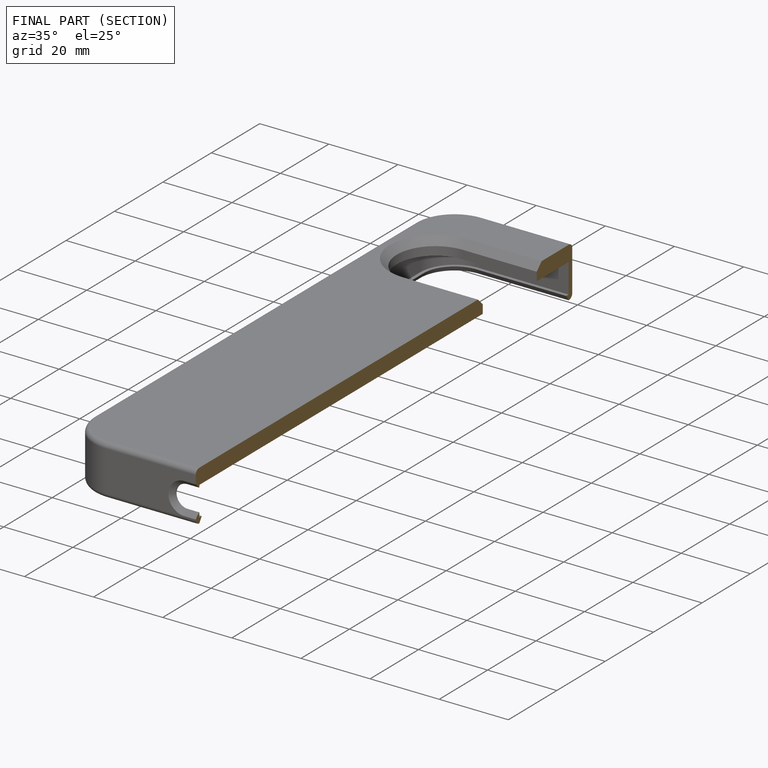
[diagram: finished part — half-section view (interior)]
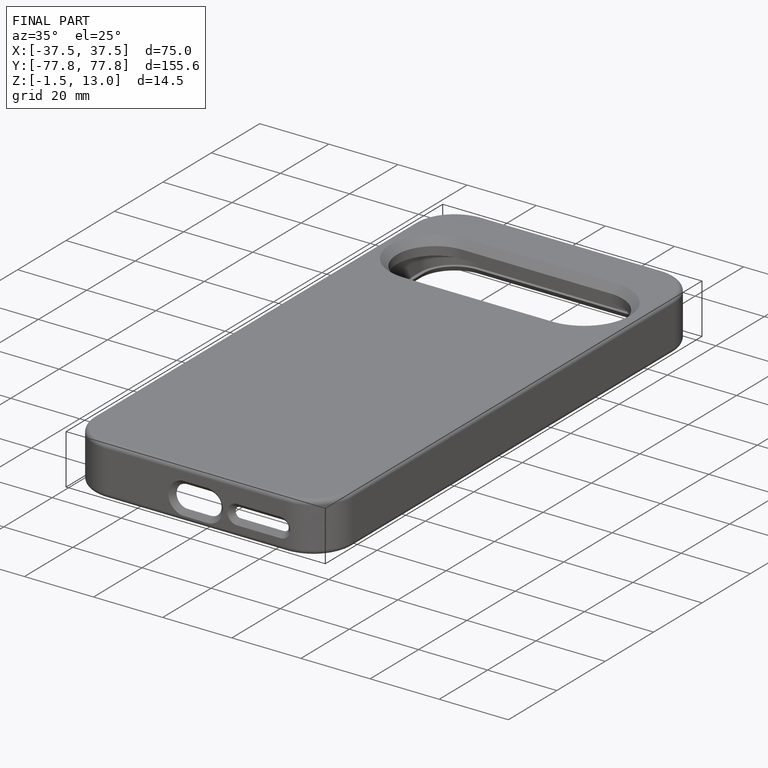
[diagram: finished part — iso view with bounding-box wireframe]
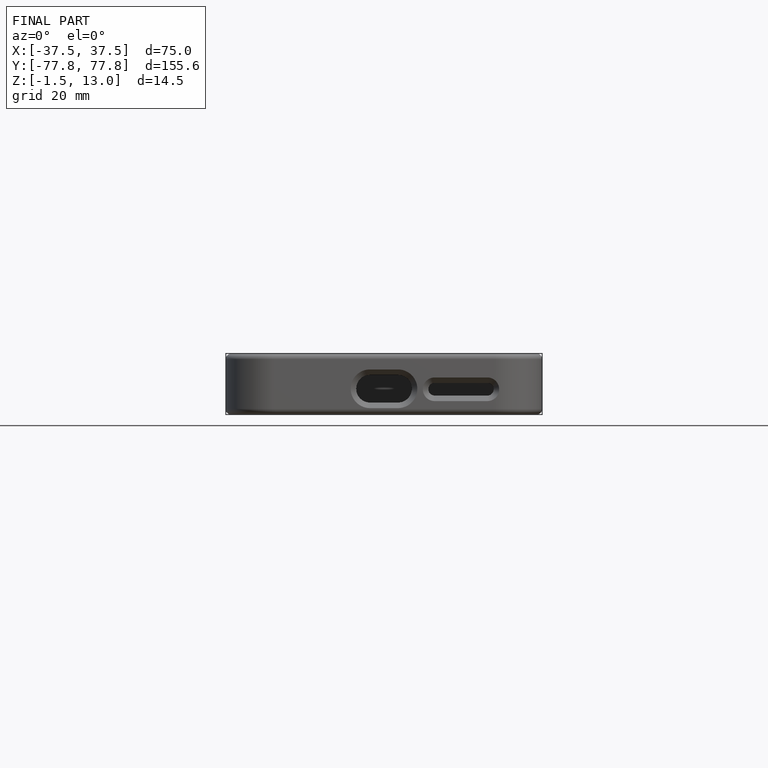
[diagram: finished part — front view with bounding-box wireframe]
